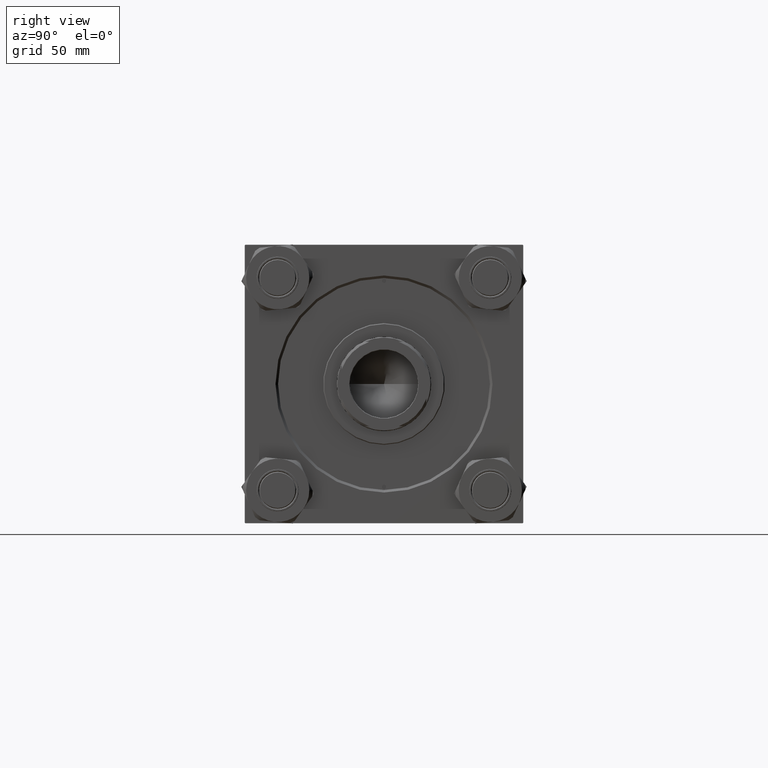
[diagram: clean part render]
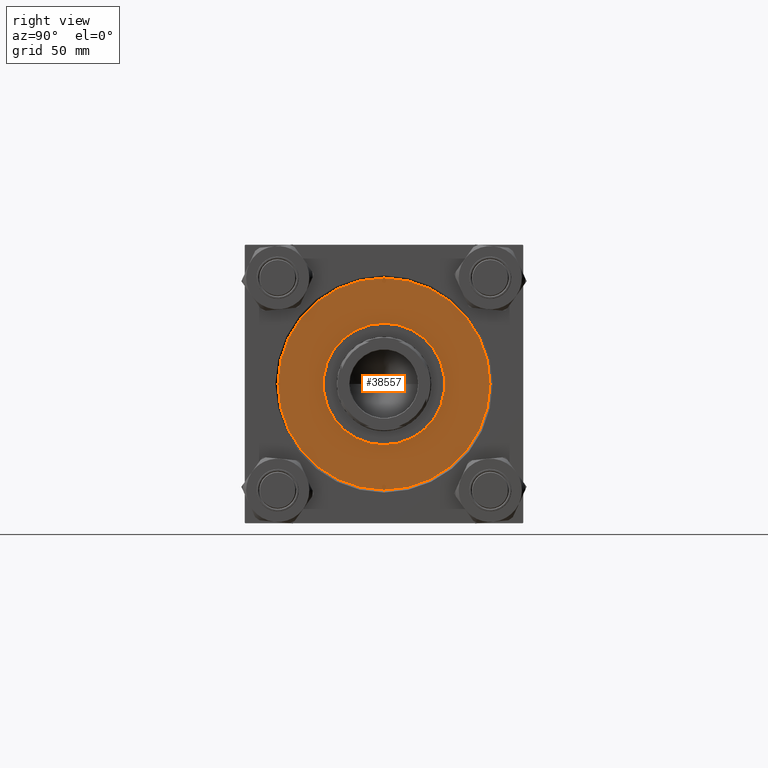
[diagram: same view with one face highlighted and labeled with its STEP entity id]
A machine part, right view. The second image highlights one B-rep face of the part: STEP entity #38557.
In plain terms, the highlighted planar face has unit normal (1, 0, -0).
Its self-contained STEP definition (entity closure, byte-faithful):
#536 = ORIENTED_EDGE ( 'NONE', *, *, #27083, .T. ) ;
#1695 = DIRECTION ( 'NONE',  ( 0.000000000000000000, 0.000000000000000000, 1.000000000000000000 ) ) ;
#1881 = DIRECTION ( 'NONE',  ( 1.000000000000000000, 0.000000000000000000, 0.000000000000000000 ) ) ;
#2460 = EDGE_LOOP ( 'NONE', ( #10987, #34451 ) ) ;
#2896 = CARTESIAN_POINT ( 'NONE',  ( 61.00000000000000000, 0.000000000000000000, 28.69999999999999929 ) ) ;
#4277 = CARTESIAN_POINT ( 'NONE',  ( -62.25000000000000000, 1.530808498934184175E-16, 28.69999999999999929 ) ) ;
#5612 = FACE_BOUND ( 'NONE', #37602, .T. ) ;
#6015 = CARTESIAN_POINT ( 'NONE',  ( -61.00000000000000000, 0.000000000000000000, 28.69999999999999929 ) ) ;
#6192 = ORIENTED_EDGE ( 'NONE', *, *, #45187, .F. ) ;
#7564 = CARTESIAN_POINT ( 'NONE',  ( -62.75000000000000000, 0.000000000000000000, 28.69999999999999929 ) ) ;
#7690 = CIRCLE ( 'NONE', #36225, 1.250000000000001110 ) ;
#8388 = AXIS2_PLACEMENT_3D ( 'NONE', #30319, #25224, #29803 ) ;
#9696 = CARTESIAN_POINT ( 'NONE',  ( 0.000000000000000000, 0.000000000000000000, 28.69999999999999929 ) ) ;
#10987 = ORIENTED_EDGE ( 'NONE', *, *, #12565, .F. ) ;
#11427 = CARTESIAN_POINT ( 'NONE',  ( 0.000000000000000000, 0.000000000000000000, 28.69999999999999929 ) ) ;
#12123 = DIRECTION ( 'NONE',  ( 1.000000000000000000, 0.000000000000000000, 0.000000000000000000 ) ) ;
#12127 = EDGE_LOOP ( 'NONE', ( #43085, #40332 ) ) ;
#12565 = EDGE_CURVE ( 'NONE', #18993, #28504, #30961, .T. ) ;
#15543 = DIRECTION ( 'NONE',  ( 1.000000000000000000, 0.000000000000000000, 0.000000000000000000 ) ) ;
#16163 = AXIS2_PLACEMENT_3D ( 'NONE', #30150, #18404, #37812 ) ;
#17020 = DIRECTION ( 'NONE',  ( 1.000000000000000000, 0.000000000000000000, 0.000000000000000000 ) ) ;
#17106 = AXIS2_PLACEMENT_3D ( 'NONE', #38522, #19125, #15543 ) ;
#17960 = DIRECTION ( 'NONE',  ( 0.000000000000000000, 0.000000000000000000, 1.000000000000000000 ) ) ;
#18218 = CIRCLE ( 'NONE', #27183, 1.250000000000001110 ) ;
#18255 = CIRCLE ( 'NONE', #8388, 1.250000000000001110 ) ;
#18404 = DIRECTION ( 'NONE',  ( 0.000000000000000000, 0.000000000000000000, 1.000000000000000000 ) ) ;
#18993 = VERTEX_POINT ( 'NONE', #38153 ) ;
#19033 = CARTESIAN_POINT ( 'NONE',  ( 0.000000000000000000, 0.000000000000000000, 28.69999999999999929 ) ) ;
#19125 = DIRECTION ( 'NONE',  ( 0.000000000000000000, 0.000000000000000000, 1.000000000000000000 ) ) ;
#20130 = CIRCLE ( 'NONE', #48606, 62.75000000000000000 ) ;
#21188 = DIRECTION ( 'NONE',  ( 1.000000000000000000, 0.000000000000000000, -0.000000000000000000 ) ) ;
#23101 = DIRECTION ( 'NONE',  ( 0.000000000000000000, 0.000000000000000000, 1.000000000000000000 ) ) ;
#23486 = VERTEX_POINT ( 'NONE', #29999 ) ;
#24790 = VERTEX_POINT ( 'NONE', #7564 ) ;
#25224 = DIRECTION ( 'NONE',  ( 0.000000000000000000, 0.000000000000000000, 1.000000000000000000 ) ) ;
#25281 = DIRECTION ( 'NONE',  ( 0.000000000000000000, 0.000000000000000000, 1.000000000000000000 ) ) ;
#25380 = VERTEX_POINT ( 'NONE', #39603 ) ;
#26700 = VERTEX_POINT ( 'NONE', #30630 ) ;
#27012 = EDGE_CURVE ( 'NONE', #45490, #43480, #18255, .T. ) ;
#27083 = EDGE_CURVE ( 'NONE', #24790, #25380, #49187, .T. ) ;
#27183 = AXIS2_PLACEMENT_3D ( 'NONE', #2896, #17960, #1881 ) ;
#27229 = AXIS2_PLACEMENT_3D ( 'NONE', #11427, #45870, #38750 ) ;
#28359 = DIRECTION ( 'NONE',  ( 0.000000000000000000, 0.000000000000000000, 1.000000000000000000 ) ) ;
#28461 = EDGE_CURVE ( 'NONE', #28504, #18993, #18218, .T. ) ;
#28504 = VERTEX_POINT ( 'NONE', #48563 ) ;
#28849 = PLANE ( 'NONE',  #48473 ) ;
#29803 = DIRECTION ( 'NONE',  ( 1.000000000000000000, 0.000000000000000000, 0.000000000000000000 ) ) ;
#29819 = EDGE_CURVE ( 'NONE', #23486, #26700, #35390, .T. ) ;
#29999 = CARTESIAN_POINT ( 'NONE',  ( -36.00000000000000000, 0.000000000000000000, 28.69999999999999929 ) ) ;
#30150 = CARTESIAN_POINT ( 'NONE',  ( 0.000000000000000000, 0.000000000000000000, 28.69999999999999929 ) ) ;
#30319 = CARTESIAN_POINT ( 'NONE',  ( -61.00000000000000000, 0.000000000000000000, 28.69999999999999929 ) ) ;
#30630 = CARTESIAN_POINT ( 'NONE',  ( 36.00000000000000000, 4.408728476930470856E-15, 28.69999999999999929 ) ) ;
#30961 = CIRCLE ( 'NONE', #17106, 1.250000000000001110 ) ;
#30987 = ORIENTED_EDGE ( 'NONE', *, *, #29819, .F. ) ;
#31348 = EDGE_CURVE ( 'NONE', #43480, #45490, #7690, .T. ) ;
#34451 = ORIENTED_EDGE ( 'NONE', *, *, #28461, .F. ) ;
#35390 = CIRCLE ( 'NONE', #43550, 36.00000000000000000 ) ;
#36225 = AXIS2_PLACEMENT_3D ( 'NONE', #6015, #1695, #17020 ) ;
#37003 = ORIENTED_EDGE ( 'NONE', *, *, #46434, .T. ) ;
#37602 = EDGE_LOOP ( 'NONE', ( #30987, #6192 ) ) ;
#37812 = DIRECTION ( 'NONE',  ( 1.000000000000000000, 0.000000000000000000, 0.000000000000000000 ) ) ;
#38153 = CARTESIAN_POINT ( 'NONE',  ( 62.25000000000000000, 0.000000000000000000, 28.69999999999999929 ) ) ;
#38522 = CARTESIAN_POINT ( 'NONE',  ( 61.00000000000000000, 0.000000000000000000, 28.69999999999999929 ) ) ;
#38557 = ADVANCED_FACE ( 'NONE', ( #48223, #47982, #5612, #44661 ), #28849, .T. ) ;
#38750 = DIRECTION ( 'NONE',  ( 1.000000000000000000, 0.000000000000000000, 0.000000000000000000 ) ) ;
#38968 = CIRCLE ( 'NONE', #16163, 36.00000000000000000 ) ;
#39603 = CARTESIAN_POINT ( 'NONE',  ( 62.75000000000000000, 7.684658664649641591E-15, 28.69999999999999929 ) ) ;
#39859 = CARTESIAN_POINT ( 'NONE',  ( 0.000000000000000000, 0.000000000000000000, 28.69999999999999929 ) ) ;
#40332 = ORIENTED_EDGE ( 'NONE', *, *, #31348, .F. ) ;
#40846 = DIRECTION ( 'NONE',  ( 1.000000000000000000, 0.000000000000000000, 0.000000000000000000 ) ) ;
#43085 = ORIENTED_EDGE ( 'NONE', *, *, #27012, .F. ) ;
#43480 = VERTEX_POINT ( 'NONE', #4277 ) ;
#43550 = AXIS2_PLACEMENT_3D ( 'NONE', #9696, #25281, #40846 ) ;
#44661 = FACE_OUTER_BOUND ( 'NONE', #49111, .T. ) ;
#45187 = EDGE_CURVE ( 'NONE', #26700, #23486, #38968, .T. ) ;
#45490 = VERTEX_POINT ( 'NONE', #49650 ) ;
#45870 = DIRECTION ( 'NONE',  ( 0.000000000000000000, 0.000000000000000000, 1.000000000000000000 ) ) ;
#46434 = EDGE_CURVE ( 'NONE', #25380, #24790, #20130, .T. ) ;
#47982 = FACE_BOUND ( 'NONE', #2460, .T. ) ;
#48223 = FACE_BOUND ( 'NONE', #12127, .T. ) ;
#48473 = AXIS2_PLACEMENT_3D ( 'NONE', #39859, #28359, #21188 ) ;
#48563 = CARTESIAN_POINT ( 'NONE',  ( 59.75000000000000000, 1.530808498934184175E-16, 28.69999999999999929 ) ) ;
#48606 = AXIS2_PLACEMENT_3D ( 'NONE', #19033, #23101, #12123 ) ;
#49111 = EDGE_LOOP ( 'NONE', ( #536, #37003 ) ) ;
#49187 = CIRCLE ( 'NONE', #27229, 62.75000000000000000 ) ;
#49650 = CARTESIAN_POINT ( 'NONE',  ( -59.75000000000000000, 0.000000000000000000, 28.69999999999999929 ) ) ;